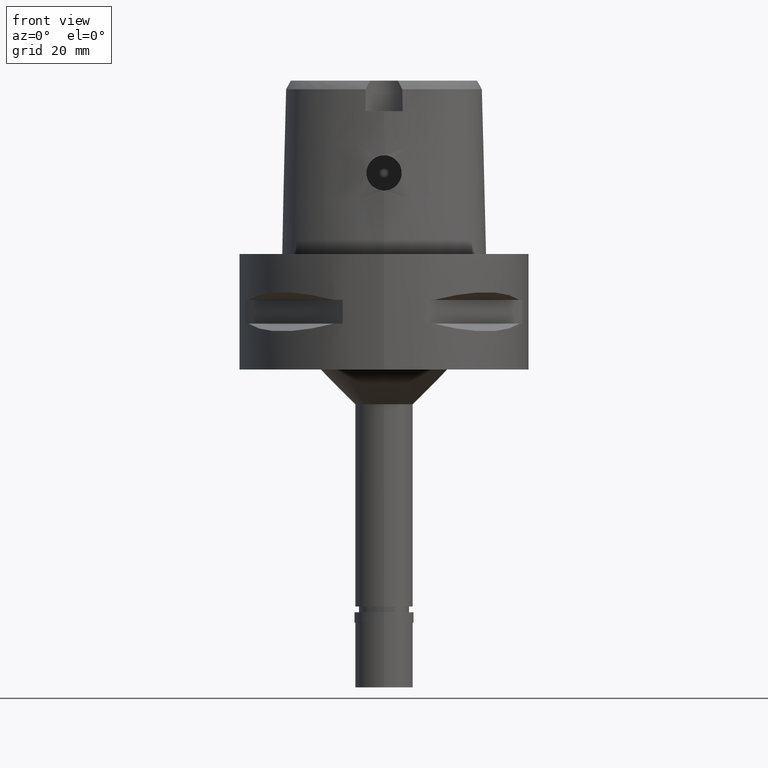
[diagram: clean part render]
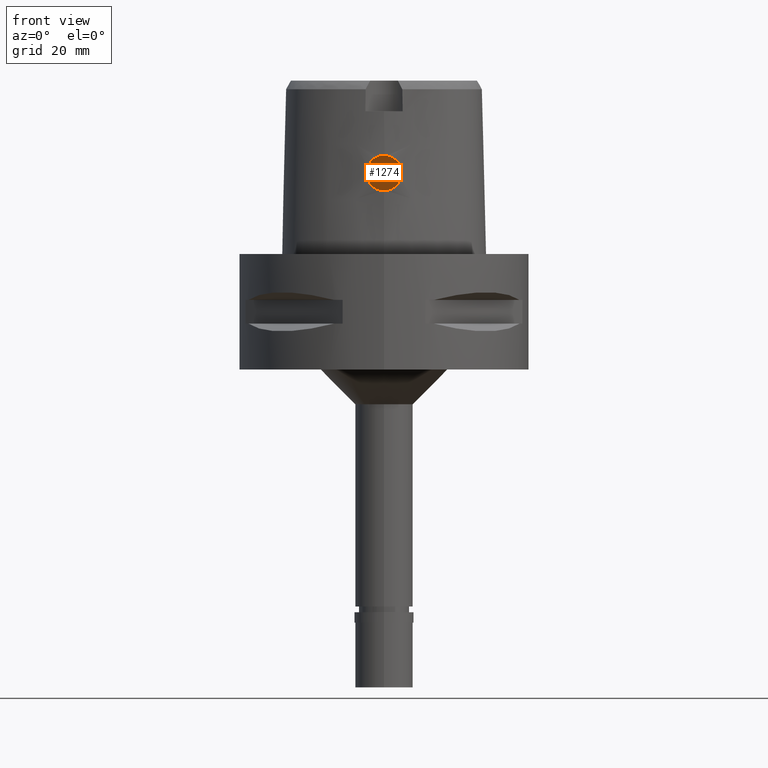
[diagram: same view with one face highlighted and labeled with its STEP entity id]
A machine part, front view. The second image highlights one B-rep face of the part: STEP entity #1274.
In plain terms, the highlighted planar face has unit normal (0, 1, 0).
Its self-contained STEP definition (entity closure, byte-faithful):
#427 = AXIS2_PLACEMENT_3D ( 'NONE', #4190, #3896, #2363 ) ;
#971 = PLANE ( 'NONE',  #2603 ) ;
#990 = CARTESIAN_POINT ( 'NONE',  ( 0.0000000000000000000, 14.00000000000000000, 10.94999999999999929 ) ) ;
#1163 = EDGE_CURVE ( 'NONE', #2496, #1703, #3550, .T. ) ;
#1274 = ADVANCED_FACE ( 'NONE', ( #3224 ), #971, .F. ) ;
#1442 = AXIS2_PLACEMENT_3D ( 'NONE', #4017, #1766, #3202 ) ;
#1451 = CARTESIAN_POINT ( 'NONE',  ( 0.0000000000000000000, 14.00000000000000000, 17.05000000000000071 ) ) ;
#1703 = VERTEX_POINT ( 'NONE', #990 ) ;
#1766 = DIRECTION ( 'NONE',  ( 0.0000000000000000000, 1.000000000000000000, 0.0000000000000000000 ) ) ;
#1788 = ORIENTED_EDGE ( 'NONE', *, *, #1163, .F. ) ;
#2076 = CIRCLE ( 'NONE', #427, 3.050000000000000711 ) ;
#2363 = DIRECTION ( 'NONE',  ( 0.0000000000000000000, 0.0000000000000000000, -1.000000000000000000 ) ) ;
#2496 = VERTEX_POINT ( 'NONE', #1451 ) ;
#2603 = AXIS2_PLACEMENT_3D ( 'NONE', #3250, #4043, #4759 ) ;
#3202 = DIRECTION ( 'NONE',  ( 0.0000000000000000000, 0.0000000000000000000, 1.000000000000000000 ) ) ;
#3224 = FACE_OUTER_BOUND ( 'NONE', #4096, .T. ) ;
#3250 = CARTESIAN_POINT ( 'NONE',  ( 0.0000000000000000000, 14.00000000000000000, 0.0000000000000000000 ) ) ;
#3550 = CIRCLE ( 'NONE', #1442, 3.049999999999998934 ) ;
#3758 = EDGE_CURVE ( 'NONE', #1703, #2496, #2076, .T. ) ;
#3896 = DIRECTION ( 'NONE',  ( 0.0000000000000000000, 1.000000000000000000, 0.0000000000000000000 ) ) ;
#3937 = ORIENTED_EDGE ( 'NONE', *, *, #3758, .F. ) ;
#4017 = CARTESIAN_POINT ( 'NONE',  ( 0.0000000000000000000, 14.00000000000000000, 14.00000000000000000 ) ) ;
#4043 = DIRECTION ( 'NONE',  ( -0.0000000000000000000, 1.000000000000000000, 0.0000000000000000000 ) ) ;
#4096 = EDGE_LOOP ( 'NONE', ( #1788, #3937 ) ) ;
#4190 = CARTESIAN_POINT ( 'NONE',  ( 0.0000000000000000000, 14.00000000000000000, 14.00000000000000000 ) ) ;
#4759 = DIRECTION ( 'NONE',  ( 1.000000000000000000, 0.0000000000000000000, 0.0000000000000000000 ) ) ;